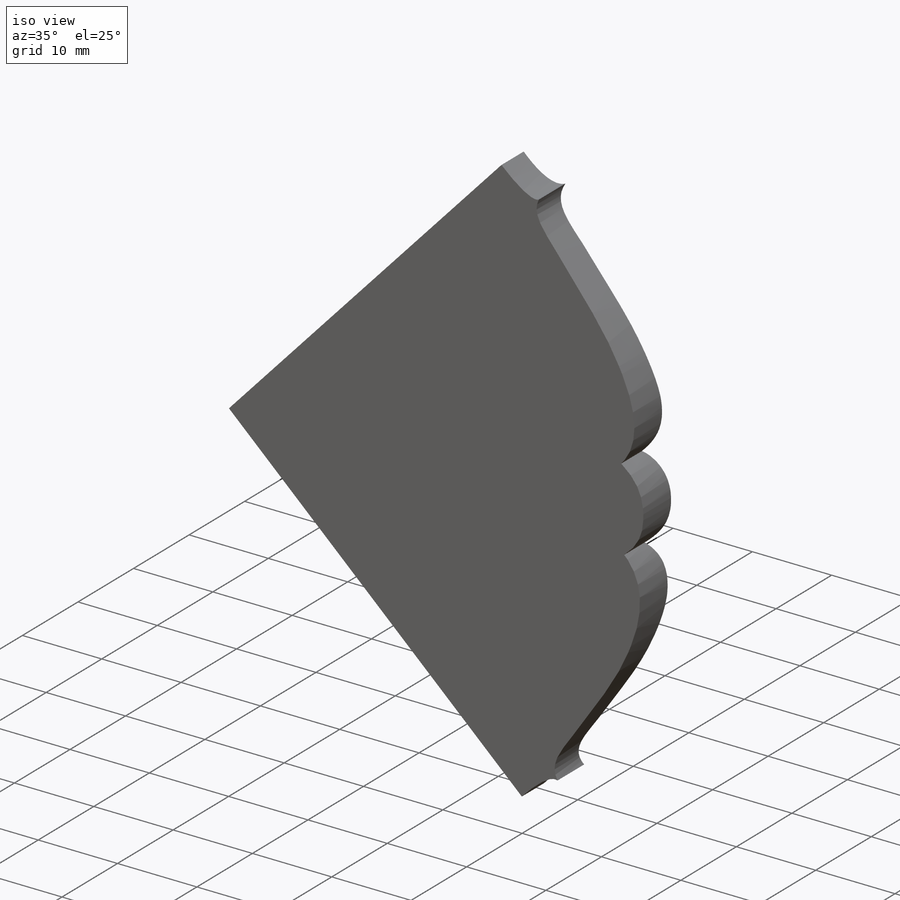
[diagram: iso view]
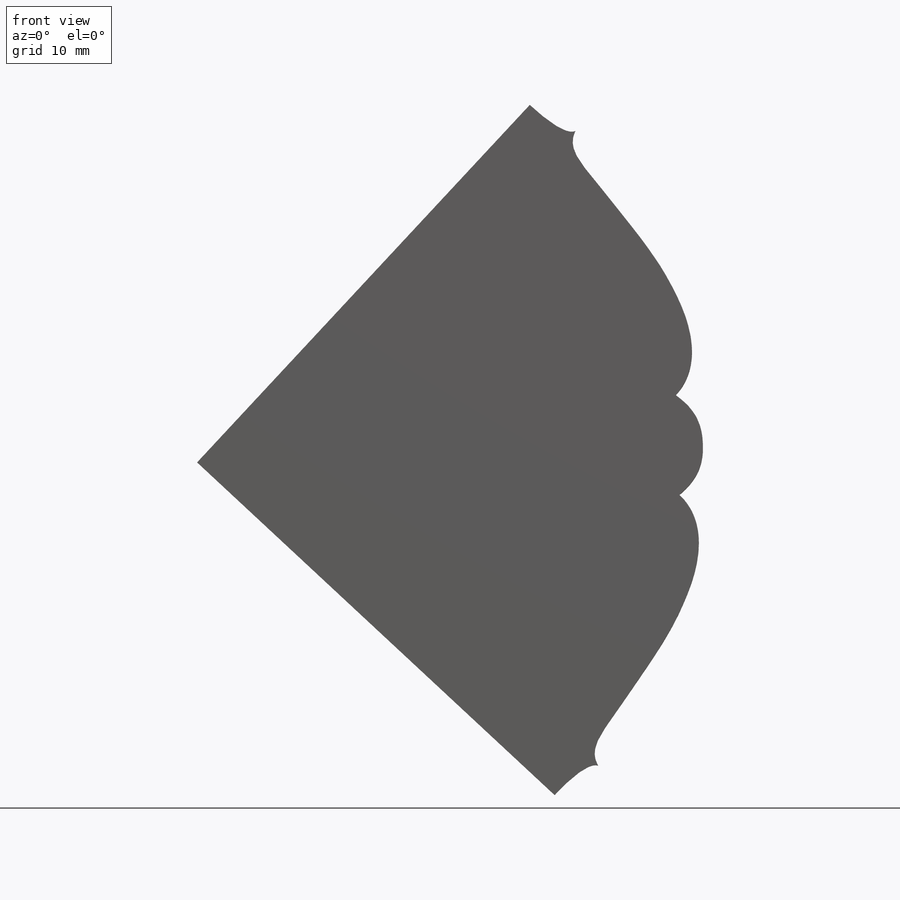
[diagram: front view]
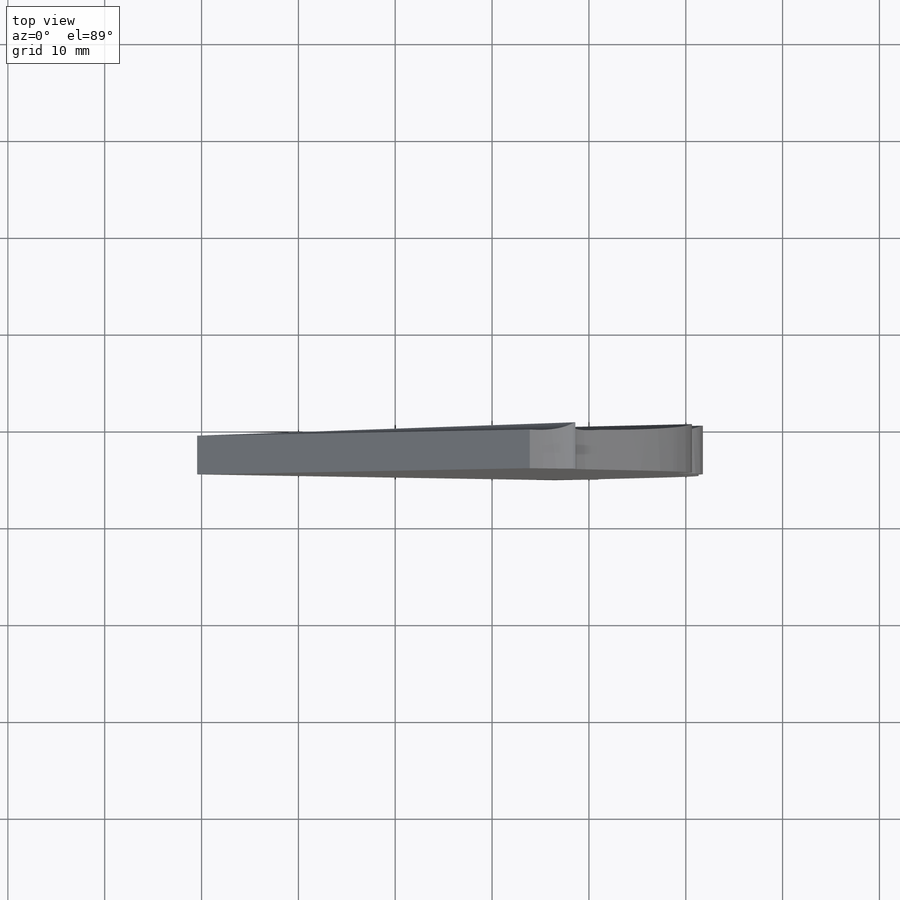
[diagram: top view]
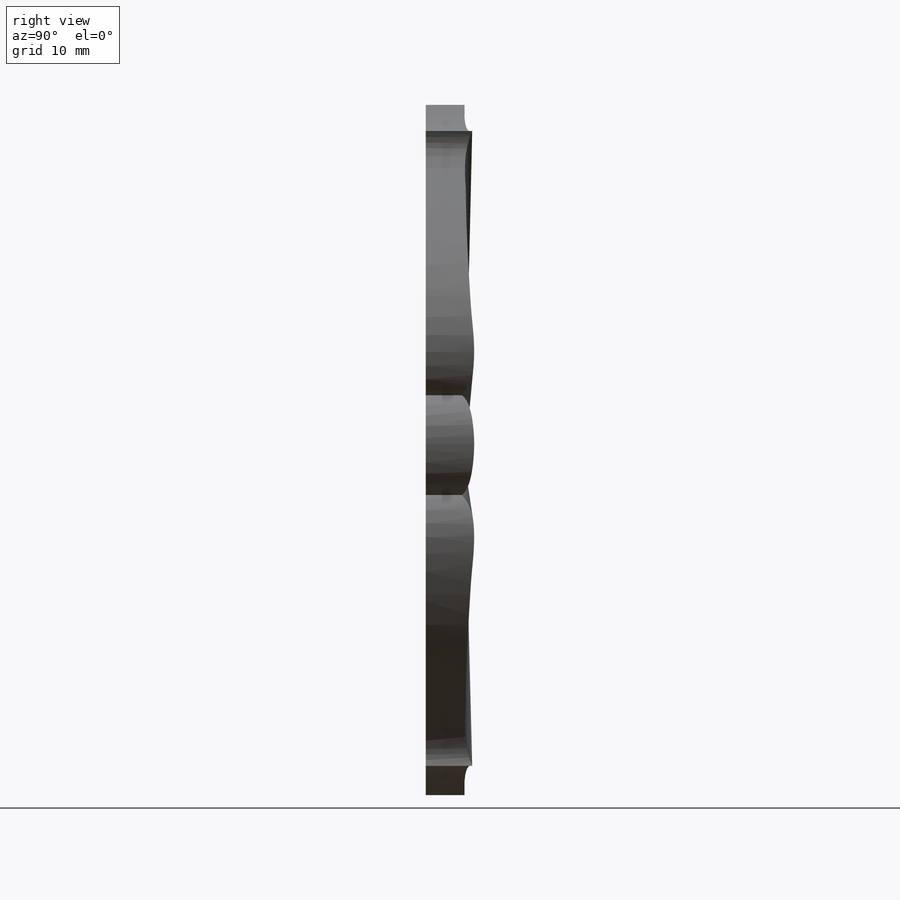
[diagram: right view]
SOLIDWORKS PART (.sldprt)
format: sldprt  version: not decoded by parser v0  size: 300,544 bytes
history: native  units: mm
features: plane x5, sketch x5, mirror x4, material x1, extrude x1, cut_extrude x1, delete_body x1 (+8 scaffold rows collapsed)
feature tree (26):
  scaffold x8  (default folders/planes/origin — collapsed)
  material  "Material <nicht festgelegt>"
  plane  "Ebene vorne"
  plane  "Ebene oben"
  plane  "Ebene rechts"
  sketch  "Skizze3"  dims[c1.D1=10.0mm c1.D2=~22.692936mm c2.D1=~1.148158mm c2.D2=~2.605507mm c2.D3=~49.559353mm c2.D4=85.9mm c2.D7=~2.605507mm c3.D1=~52.757019mm c3.D2=~84.854987mm c3.D5=~84.854987mm c4.D1=~84.854987mm c4.D7=~52.266603mm c4.D8=~84.854987mm c4.D9=~84.854987mm c4.D14=52.5mm c5.D8=~22.692936mm c5.D3=0.0mm c5.D5=9.8mm c5.D6=7.5mm c5.D7=8.0mm c6.D8=10.7mm c6.D1=9.8mm c6.D2=7.5mm c6.D3=9.5mm c6.D4=9.5mm c6.D5=8.0mm c6.D6=10.3mm c7.D1=7.5mm c7.D6=10.3mm c7.D7=9.8mm c7.D8=10.0mm c7.D9=8.0mm c7.D10=10.3mm c7.D11=6.5mm c7.D12=29.2mm c8.D6=5.15mm c8.D13=~7.201257mm c8.D10=45.0deg c8.D5=8.0mm c8.D14=10.0mm c8.D15=45.0deg]
  extrude  "Aufsatz-Linear austragen2"  Depth=5mm
  sketch  "Skizze12"
  cut_extrude  "Schnitt-Linear austragen2"  [1 undecoded]
  plane  "Ebene2"
  sketch  "3D-Skizze1"  dims[c1.D1=3.2mm c2.D1=4.5mm c3.D1=3.65mm c4.D1=4.5mm c5.D1=3.5mm]
  sketch  "Skizze9"  dims[D1=4.5mm D2=3.5mm]
  plane  "Ebene3"
  sketch  "Skizze10"  dims[D1=1.0mm]
  delete_body  "Körper-Löschen1"
  mirror  "Spiegeln1"
  mirror  "Spiegeln2"
  mirror  "Spiegeln3"
  mirror  "Spiegeln4"
decode coverage: 5 of 12 modeling features carry decoded parameters
note: ~ marks probable driven/reference dimensions
note: 1 parameter value undecoded
note: suppression state not decoded; provenance and decode notes live in map.json
